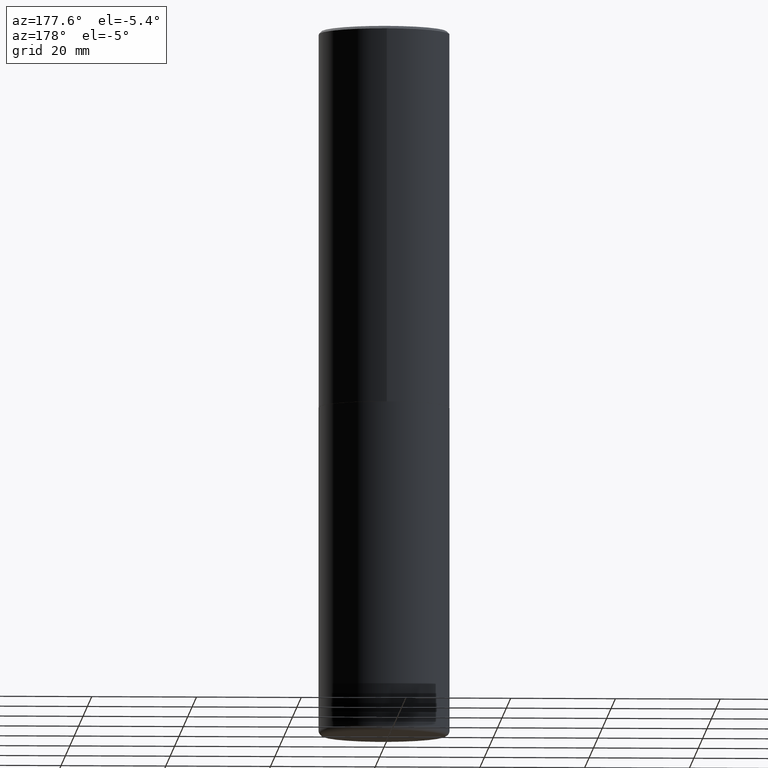
[diagram: clean part render]
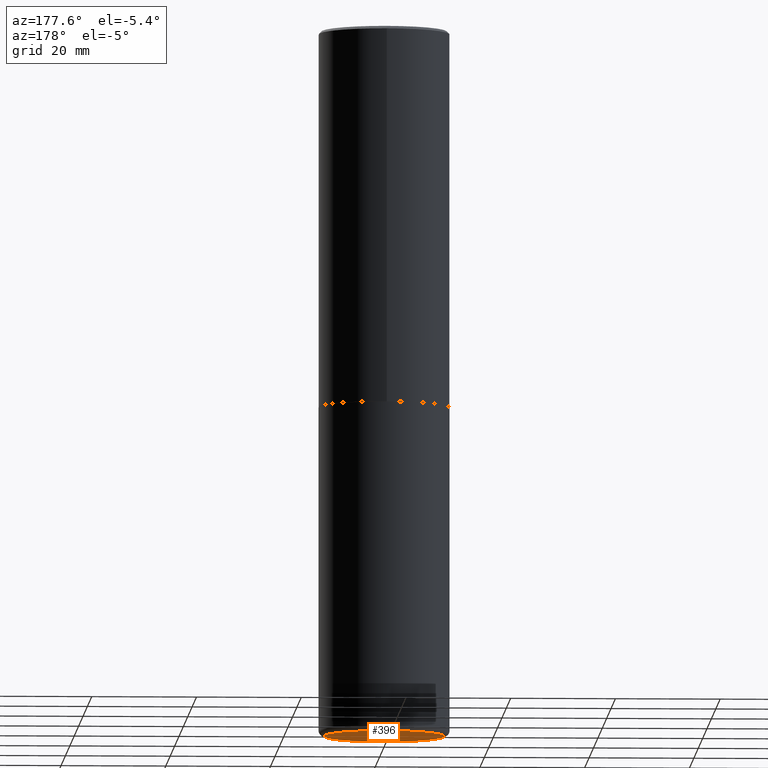
[diagram: same view with one face highlighted and labeled with its STEP entity id]
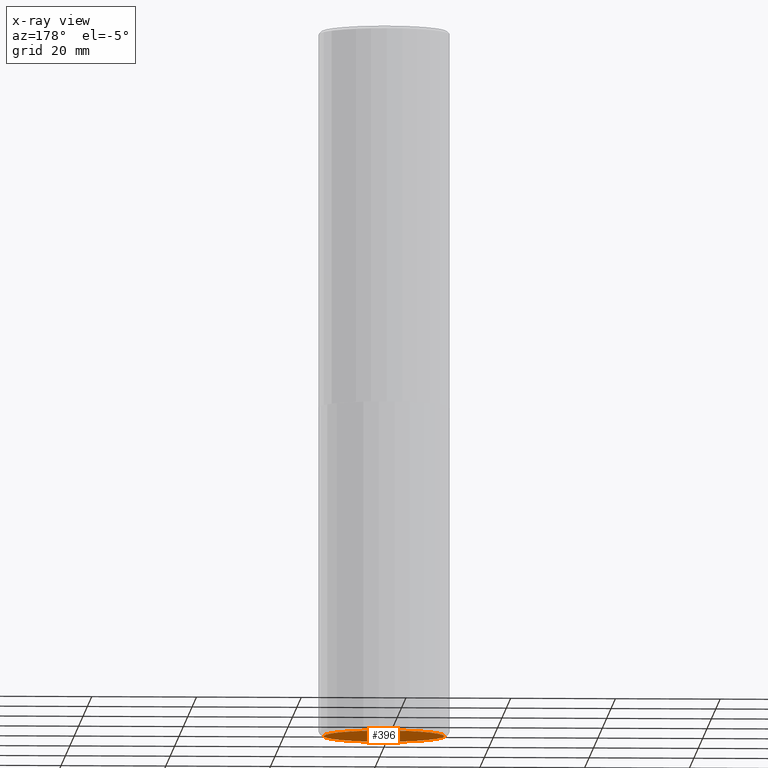
[diagram: x-ray of the same camera — body ghosted, the highlighted face saturated]
A machine part, auxiliary view. The second image highlights one B-rep face of the part: STEP entity #396.
The next image is the same camera in x-ray: the body ghosted, the highlighted face saturated — about 0% of this face is hidden behind the body in this view.
In plain terms, the highlighted planar face has unit normal (0, -0, -1).
Its self-contained STEP definition (entity closure, byte-faithful):
#10 = DIRECTION ( 'NONE',  ( 1.000000000000000000, -6.982962677686269077E-15, 0.000000000000000000 ) ) ;
#11 = ORIENTED_EDGE ( 'NONE', *, *, #378, .F. ) ;
#43 = CARTESIAN_POINT ( 'NONE',  ( 1.299766670487400442E-28, -1.855722331595132604E-14, -5.315000000000001279 ) ) ;
#60 = AXIS2_PLACEMENT_3D ( 'NONE', #135, #72, #245 ) ;
#72 = DIRECTION ( 'NONE',  ( 2.438088387897960049E-29, -3.491481338843145188E-15, -1.000000000000000000 ) ) ;
#96 = EDGE_LOOP ( 'NONE', ( #368, #11 ) ) ;
#113 = CARTESIAN_POINT ( 'NONE',  ( 0.4527499999999999858, -2.171875966827378497E-14, -5.315000000000001279 ) ) ;
#125 = CARTESIAN_POINT ( 'NONE',  ( -0.4527499999999999858, -1.513148197847751654E-14, -5.315000000000001279 ) ) ;
#135 = CARTESIAN_POINT ( 'NONE',  ( 4.039873082139847440E-29, -3.138529362965696164E-14, -5.315000000000001279 ) ) ;
#149 = CIRCLE ( 'NONE', #388, 0.4527499999999999858 ) ;
#167 = PLANE ( 'NONE',  #60 ) ;
#168 = DIRECTION ( 'NONE',  ( -2.445468806185136597E-29, 3.491481338843145583E-15, 1.000000000000000000 ) ) ;
#170 = DIRECTION ( 'NONE',  ( 1.000000000000000000, -6.982962677686269077E-15, 0.000000000000000000 ) ) ;
#206 = FACE_OUTER_BOUND ( 'NONE', #96, .T. ) ;
#237 = CIRCLE ( 'NONE', #337, 0.4527499999999999858 ) ;
#242 = CARTESIAN_POINT ( 'NONE',  ( 1.299766670487400442E-28, -1.855722331595132604E-14, -5.315000000000001279 ) ) ;
#245 = DIRECTION ( 'NONE',  ( -1.000000000000000000, 6.982962677686265922E-15, -4.876176775795935793E-29 ) ) ;
#258 = VERTEX_POINT ( 'NONE', #125 ) ;
#273 = DIRECTION ( 'NONE',  ( -2.445468806185136597E-29, 3.491481338843145583E-15, 1.000000000000000000 ) ) ;
#307 = EDGE_CURVE ( 'NONE', #355, #258, #237, .T. ) ;
#337 = AXIS2_PLACEMENT_3D ( 'NONE', #43, #168, #10 ) ;
#355 = VERTEX_POINT ( 'NONE', #113 ) ;
#368 = ORIENTED_EDGE ( 'NONE', *, *, #307, .F. ) ;
#378 = EDGE_CURVE ( 'NONE', #258, #355, #149, .T. ) ;
#388 = AXIS2_PLACEMENT_3D ( 'NONE', #242, #273, #170 ) ;
#396 = ADVANCED_FACE ( 'NONE', ( #206 ), #167, .T. ) ;